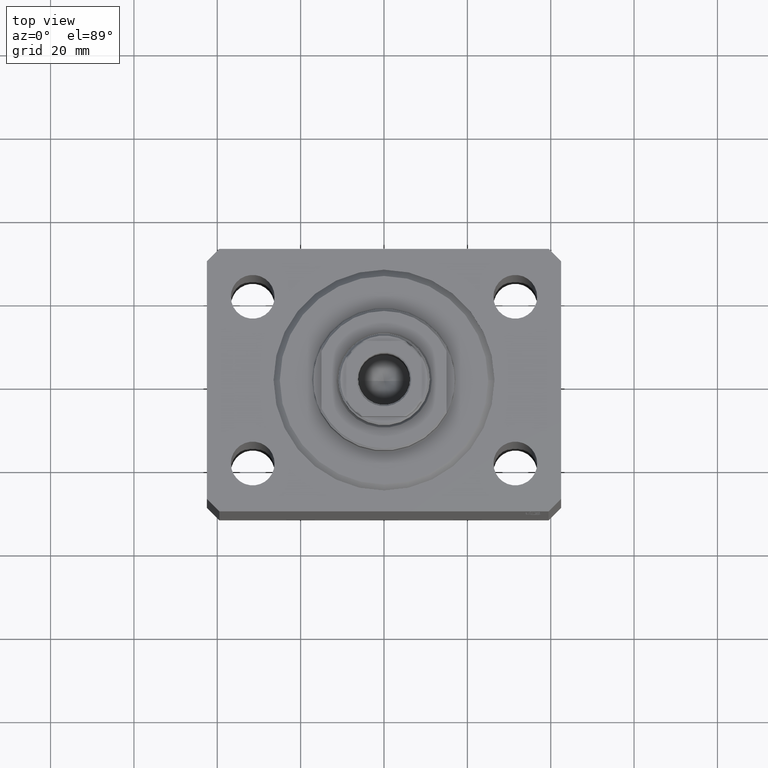
[diagram: clean part render]
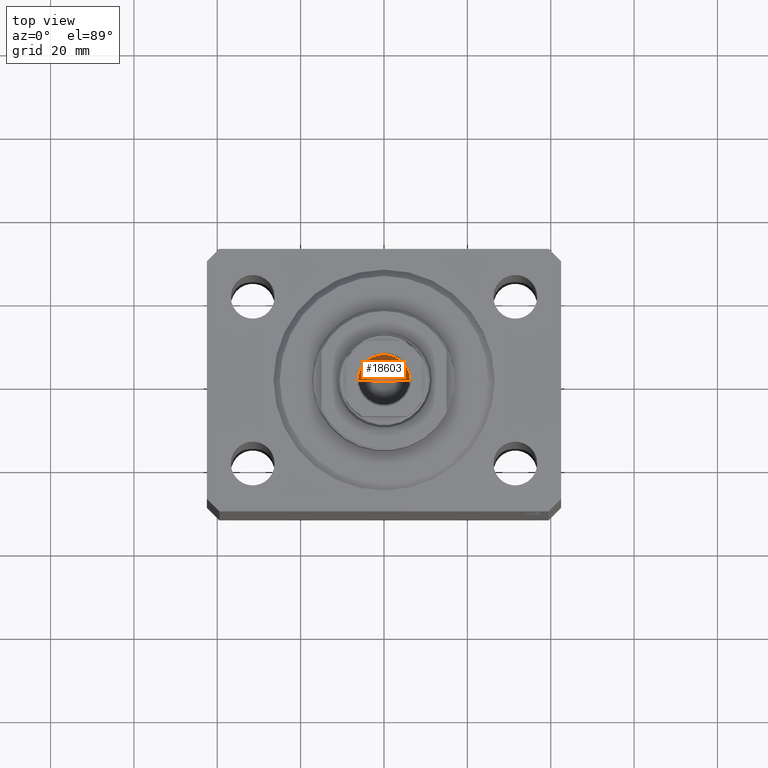
[diagram: same view with one face highlighted and labeled with its STEP entity id]
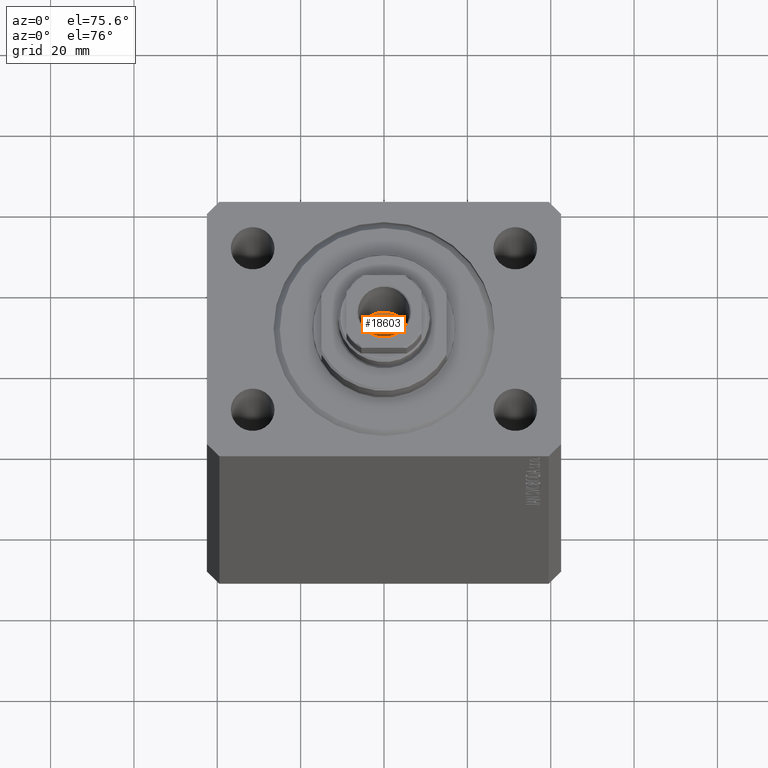
[diagram: same view with one face highlighted and labeled with its STEP entity id]
A machine part, top view. The second image highlights one B-rep face of the part: STEP entity #18603.
A second angle (auxiliary view) of the same face is appended — the face is thin or edge-on in the first view.
In plain terms, the highlighted conical surface has half-angle 59 deg.
Its self-contained STEP definition (entity closure, byte-faithful):
#5318 = CIRCLE ( 'NONE', #35557, 6.249999999999993783 ) ;
#5509 = VECTOR ( 'NONE', #31066, 1000.000000000000000 ) ;
#8203 = EDGE_LOOP ( 'NONE', ( #37812, #35887, #17345 ) ) ;
#9208 = VERTEX_POINT ( 'NONE', #40924 ) ;
#10411 = VECTOR ( 'NONE', #18001, 1000.000000000000000 ) ;
#12882 = CARTESIAN_POINT ( 'NONE',  ( 6.249999999999993783, 0.000000000000000000, 103.5999999999999943 ) ) ;
#13431 = EDGE_CURVE ( 'NONE', #44211, #9208, #31320, .T. ) ;
#16472 = EDGE_CURVE ( 'NONE', #36417, #9208, #5318, .T. ) ;
#16908 = CONICAL_SURFACE ( 'NONE', #23420, 6.249999999999993783, 1.029744258676652979 ) ;
#16994 = DIRECTION ( 'NONE',  ( 1.000000000000000000, 0.000000000000000000, 0.000000000000000000 ) ) ;
#17345 = ORIENTED_EDGE ( 'NONE', *, *, #16472, .T. ) ;
#18001 = DIRECTION ( 'NONE',  ( -0.8571673007021115565, 1.049727191138617710E-16, 0.5150380749100554878 ) ) ;
#18603 = ADVANCED_FACE ( 'NONE', ( #41286 ), #16908, .F. ) ;
#20263 = LINE ( 'NONE', #37613, #5509 ) ;
#22322 = EDGE_CURVE ( 'NONE', #44211, #36417, #20263, .T. ) ;
#23420 = AXIS2_PLACEMENT_3D ( 'NONE', #30024, #30247, #30692 ) ;
#30024 = CARTESIAN_POINT ( 'NONE',  ( 0.000000000000000000, 0.000000000000000000, 103.5999999999999943 ) ) ;
#30247 = DIRECTION ( 'NONE',  ( -0.000000000000000000, -0.000000000000000000, 1.000000000000000000 ) ) ;
#30692 = DIRECTION ( 'NONE',  ( 1.000000000000000000, 0.000000000000000000, 0.000000000000000000 ) ) ;
#30959 = DIRECTION ( 'NONE',  ( -0.000000000000000000, -0.000000000000000000, 1.000000000000000000 ) ) ;
#31066 = DIRECTION ( 'NONE',  ( 0.8571673007021115565, 0.000000000000000000, 0.5150380749100554878 ) ) ;
#31110 = CARTESIAN_POINT ( 'NONE',  ( -6.249999999999993783, 7.654042494670949718E-16, 103.5999999999999943 ) ) ;
#31320 = LINE ( 'NONE', #31110, #10411 ) ;
#31400 = CARTESIAN_POINT ( 'NONE',  ( -7.434177670704979810E-15, 0.000000000000000000, 99.84462113107774428 ) ) ;
#33909 = CARTESIAN_POINT ( 'NONE',  ( 0.000000000000000000, 0.000000000000000000, 103.5999999999999943 ) ) ;
#35557 = AXIS2_PLACEMENT_3D ( 'NONE', #33909, #30959, #16994 ) ;
#35887 = ORIENTED_EDGE ( 'NONE', *, *, #22322, .T. ) ;
#36417 = VERTEX_POINT ( 'NONE', #12882 ) ;
#37613 = CARTESIAN_POINT ( 'NONE',  ( 6.249999999999993783, 0.000000000000000000, 103.5999999999999943 ) ) ;
#37812 = ORIENTED_EDGE ( 'NONE', *, *, #13431, .F. ) ;
#40924 = CARTESIAN_POINT ( 'NONE',  ( -6.249999999999993783, 7.654042494670949718E-16, 103.5999999999999943 ) ) ;
#41286 = FACE_OUTER_BOUND ( 'NONE', #8203, .T. ) ;
#44211 = VERTEX_POINT ( 'NONE', #31400 ) ;